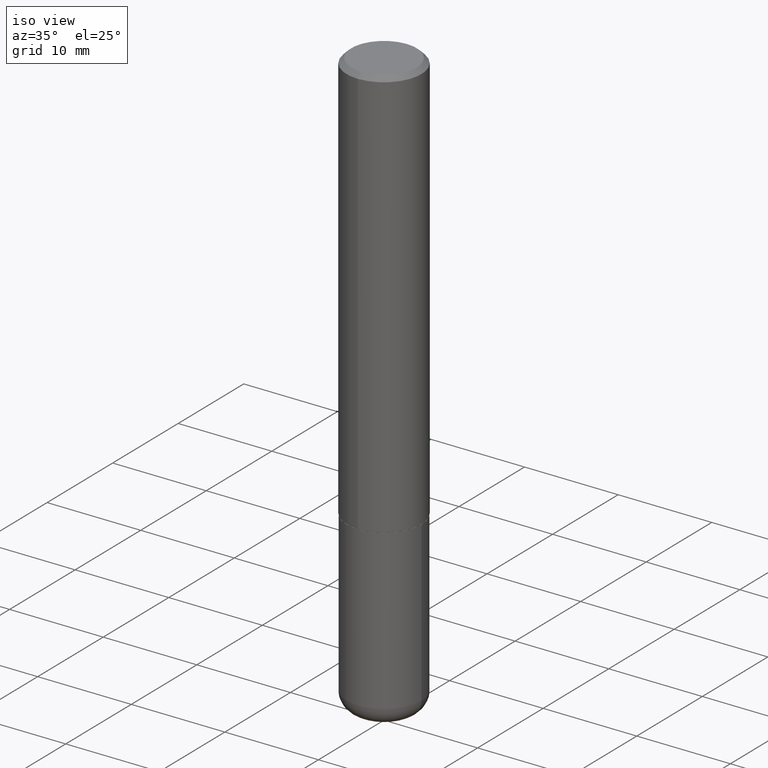
[diagram: clean part render]
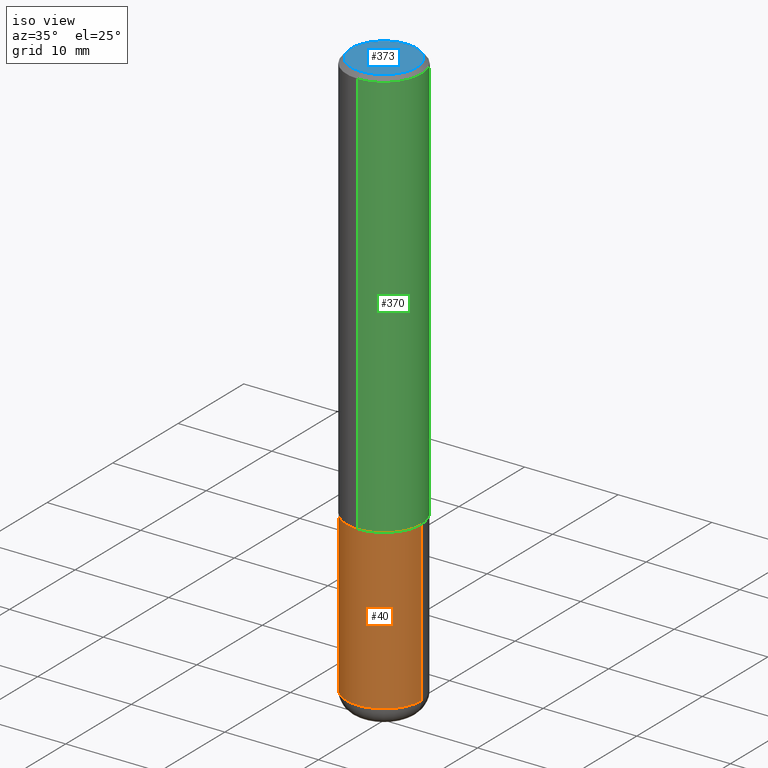
[diagram: same view with three faces highlighted in distinct colors, each labeled with its STEP entity id]
A machine part, iso view with three faces highlighted in distinct colors.
Their STEP definitions:

[orange] entity #40 — the highlighted cylindrical surface (partial cylindrical patch) has radius 4.0005 mm, axis along (-0, 0, 1).
#10 = LINE ( 'NONE', #398, #116 ) ;
#12 = VERTEX_POINT ( 'NONE', #367 ) ;
#20 = CIRCLE ( 'NONE', #194, 0.1575000000000000011 ) ;
#23 = CYLINDRICAL_SURFACE ( 'NONE', #227, 0.1575000000000000011 ) ;
#40 = ADVANCED_FACE ( 'NONE', ( #378 ), #23, .T. ) ;
#43 = DIRECTION ( 'NONE',  ( -2.445468806185136877E-29, 3.491481338843145188E-15, 1.000000000000000000 ) ) ;
#51 = DIRECTION ( 'NONE',  ( 1.000000000000000000, -6.982962677686261977E-15, 0.000000000000000000 ) ) ;
#70 = VECTOR ( 'NONE', #364, 39.37007874015748143 ) ;
#84 = EDGE_LOOP ( 'NONE', ( #293, #100, #313, #166 ) ) ;
#100 = ORIENTED_EDGE ( 'NONE', *, *, #330, .T. ) ;
#102 = CARTESIAN_POINT ( 'NONE',  ( 0.1574999999999999456, -9.484958205101285532E-15, -2.401600000000000623 ) ) ;
#114 = CARTESIAN_POINT ( 'NONE',  ( -0.1575000000000000011, -6.097612544499682750E-15, -1.732300000000000173 ) ) ;
#116 = VECTOR ( 'NONE', #43, 39.37007874015748143 ) ;
#118 = CARTESIAN_POINT ( 'NONE',  ( 5.873037884934225470E-29, -8.385141583365698841E-15, -2.401600000000000623 ) ) ;
#124 = DIRECTION ( 'NONE',  ( 1.000000000000000000, -6.982962677686268288E-15, 0.000000000000000000 ) ) ;
#150 = AXIS2_PLACEMENT_3D ( 'NONE', #248, #312, #124 ) ;
#166 = ORIENTED_EDGE ( 'NONE', *, *, #294, .F. ) ;
#183 = CIRCLE ( 'NONE', #150, 0.1575000000000000011 ) ;
#184 = DIRECTION ( 'NONE',  ( 1.000000000000000000, -6.982962677686265922E-15, 4.876176775795935232E-29 ) ) ;
#194 = AXIS2_PLACEMENT_3D ( 'NONE', #118, #417, #51 ) ;
#218 = CARTESIAN_POINT ( 'NONE',  ( 0.000000000000000000, 0.000000000000000000, 0.000000000000000000 ) ) ;
#227 = AXIS2_PLACEMENT_3D ( 'NONE', #218, #278, #184 ) ;
#230 = EDGE_CURVE ( 'NONE', #379, #257, #295, .T. ) ;
#236 = CARTESIAN_POINT ( 'NONE',  ( -0.1575000000000000011, 1.119104808822157801E-15, -7.747322767151475583E-30 ) ) ;
#248 = CARTESIAN_POINT ( 'NONE',  ( 4.236285612954512953E-29, -6.048293123277982656E-15, -1.732300000000000173 ) ) ;
#257 = VERTEX_POINT ( 'NONE', #114 ) ;
#268 = EDGE_CURVE ( 'NONE', #355, #12, #10, .T. ) ;
#278 = DIRECTION ( 'NONE',  ( -2.445468806185136597E-29, 3.491481338843145583E-15, 1.000000000000000000 ) ) ;
#293 = ORIENTED_EDGE ( 'NONE', *, *, #230, .F. ) ;
#294 = EDGE_CURVE ( 'NONE', #257, #12, #183, .T. ) ;
#295 = LINE ( 'NONE', #236, #70 ) ;
#312 = DIRECTION ( 'NONE',  ( -2.445468806185136597E-29, 3.491481338843145583E-15, 1.000000000000000000 ) ) ;
#313 = ORIENTED_EDGE ( 'NONE', *, *, #268, .T. ) ;
#315 = CARTESIAN_POINT ( 'NONE',  ( -0.1574999999999999456, -7.266036774543542815E-15, -2.401600000000000623 ) ) ;
#330 = EDGE_CURVE ( 'NONE', #379, #355, #20, .T. ) ;
#355 = VERTEX_POINT ( 'NONE', #102 ) ;
#364 = DIRECTION ( 'NONE',  ( -2.445468806185136877E-29, 3.491481338843145188E-15, 1.000000000000000000 ) ) ;
#367 = CARTESIAN_POINT ( 'NONE',  ( 0.1575000000000000011, -7.148109745013570136E-15, -1.732300000000000173 ) ) ;
#378 = FACE_OUTER_BOUND ( 'NONE', #84, .T. ) ;
#379 = VERTEX_POINT ( 'NONE', #315 ) ;
#398 = CARTESIAN_POINT ( 'NONE',  ( 0.1575000000000000011, -1.099816621735586889E-15, 7.679978421878598033E-30 ) ) ;
#417 = DIRECTION ( 'NONE',  ( -2.445468806185136597E-29, 3.491481338843145583E-15, 1.000000000000000000 ) ) ;

[blue] entity #373 — the highlighted planar face has unit normal (0, -0, -1).
#24 = AXIS2_PLACEMENT_3D ( 'NONE', #187, #411, #251 ) ;
#89 = EDGE_CURVE ( 'NONE', #289, #331, #234, .T. ) ;
#91 = DIRECTION ( 'NONE',  ( -6.982962677686265922E-15, -1.000000000000000000, 3.489990069892911466E-15 ) ) ;
#108 = ORIENTED_EDGE ( 'NONE', *, *, #89, .T. ) ;
#125 = CIRCLE ( 'NONE', #171, 0.1375000000000000389 ) ;
#135 = DIRECTION ( 'NONE',  ( 2.446510153727323724E-29, -3.489990069892911860E-15, -1.000000000000000000 ) ) ;
#171 = AXIS2_PLACEMENT_3D ( 'NONE', #216, #281, #91 ) ;
#179 = CARTESIAN_POINT ( 'NONE',  ( 1.029986994958724379E-15, 0.1375000000000000389, -5.398378589523384863E-16 ) ) ;
#186 = EDGE_CURVE ( 'NONE', #331, #289, #125, .T. ) ;
#187 = CARTESIAN_POINT ( 'NONE',  ( 1.467030837132400843E-45, -2.092745475026303741E-31, -5.996422434206290832E-17 ) ) ;
#192 = CARTESIAN_POINT ( 'NONE',  ( 9.601573681818618699E-16, 0.1375000000000000389, -5.098557467813069335E-16 ) ) ;
#216 = CARTESIAN_POINT ( 'NONE',  ( 1.467030837132400843E-45, -2.092745475026303741E-31, -5.996422434206290832E-17 ) ) ;
#217 = AXIS2_PLACEMENT_3D ( 'NONE', #192, #135, #353 ) ;
#226 = PLANE ( 'NONE',  #217 ) ;
#234 = CIRCLE ( 'NONE', #24, 0.1375000000000000389 ) ;
#251 = DIRECTION ( 'NONE',  ( -6.982962677686265922E-15, -1.000000000000000000, 3.489990069892911466E-15 ) ) ;
#281 = DIRECTION ( 'NONE',  ( -2.446510153727324005E-29, 3.489990069892911860E-15, 1.000000000000000000 ) ) ;
#283 = ORIENTED_EDGE ( 'NONE', *, *, #186, .T. ) ;
#289 = VERTEX_POINT ( 'NONE', #375 ) ;
#320 = FACE_OUTER_BOUND ( 'NONE', #395, .T. ) ;
#331 = VERTEX_POINT ( 'NONE', #179 ) ;
#353 = DIRECTION ( 'NONE',  ( 6.982962677686265922E-15, 1.000000000000000000, -3.489990069892911860E-15 ) ) ;
#373 = ADVANCED_FACE ( 'NONE', ( #320 ), #226, .F. ) ;
#375 = CARTESIAN_POINT ( 'NONE',  ( -1.011923454671300448E-15, -0.1375000000000000389, 4.199094102682127190E-16 ) ) ;
#395 = EDGE_LOOP ( 'NONE', ( #283, #108 ) ) ;
#411 = DIRECTION ( 'NONE',  ( -2.446510153727324005E-29, 3.489990069892911860E-15, 1.000000000000000000 ) ) ;

[green] entity #370 — the highlighted cylindrical surface (partial cylindrical patch) has radius 4.0005 mm, axis along (-0, 0, 1).
#3 = AXIS2_PLACEMENT_3D ( 'NONE', #50, #243, #301 ) ;
#11 = CIRCLE ( 'NONE', #249, 0.1574999999999999456 ) ;
#31 = LINE ( 'NONE', #198, #188 ) ;
#35 = EDGE_LOOP ( 'NONE', ( #274, #47, #151, #310 ) ) ;
#47 = ORIENTED_EDGE ( 'NONE', *, *, #388, .T. ) ;
#50 = CARTESIAN_POINT ( 'NONE',  ( 4.235643029148117026E-29, -6.042219808005598538E-15, -1.731300000000000283 ) ) ;
#68 = VERTEX_POINT ( 'NONE', #245 ) ;
#69 = DIRECTION ( 'NONE',  ( -2.446510153727324005E-29, 3.489990069892911860E-15, 1.000000000000000000 ) ) ;
#82 = CARTESIAN_POINT ( 'NONE',  ( 1.099816621735586889E-15, 0.1574999999999998901, -0.02000000000000058328 ) ) ;
#110 = CARTESIAN_POINT ( 'NONE',  ( -1.099816621735587480E-15, -0.1575000000000000844, 5.496734360081339532E-16 ) ) ;
#129 = EDGE_CURVE ( 'NONE', #254, #338, #298, .T. ) ;
#151 = ORIENTED_EDGE ( 'NONE', *, *, #157, .F. ) ;
#157 = EDGE_CURVE ( 'NONE', #68, #360, #11, .T. ) ;
#162 = VECTOR ( 'NONE', #233, 39.37007874015748143 ) ;
#172 = AXIS2_PLACEMENT_3D ( 'NONE', #348, #69, #359 ) ;
#182 = DIRECTION ( 'NONE',  ( -6.982962677686265922E-15, -1.000000000000000000, 3.496114991891766760E-15 ) ) ;
#188 = VECTOR ( 'NONE', #261, 39.37007874015748143 ) ;
#198 = CARTESIAN_POINT ( 'NONE',  ( 1.119104808822158195E-15, 0.1575000000000000844, -5.496734360081339532E-16 ) ) ;
#214 = DIRECTION ( 'NONE',  ( -2.446510153727324005E-29, 3.489990069892911860E-15, 1.000000000000000000 ) ) ;
#224 = FACE_OUTER_BOUND ( 'NONE', #35, .T. ) ;
#233 = DIRECTION ( 'NONE',  ( -2.446510153727324285E-29, 3.489990069892911860E-15, 1.000000000000000000 ) ) ;
#243 = DIRECTION ( 'NONE',  ( -2.446510153727324005E-29, 3.489990069892911860E-15, 1.000000000000000000 ) ) ;
#245 = CARTESIAN_POINT ( 'NONE',  ( -1.080528434649015385E-15, -0.1575000000000000289, -0.01999999999999948347 ) ) ;
#249 = AXIS2_PLACEMENT_3D ( 'NONE', #371, #214, #182 ) ;
#254 = VERTEX_POINT ( 'NONE', #396 ) ;
#261 = DIRECTION ( 'NONE',  ( -2.446510153727324285E-29, 3.489990069892911860E-15, 1.000000000000000000 ) ) ;
#274 = ORIENTED_EDGE ( 'NONE', *, *, #129, .T. ) ;
#290 = CYLINDRICAL_SURFACE ( 'NONE', #172, 0.1575000000000000844 ) ;
#298 = CIRCLE ( 'NONE', #3, 0.1575000000000001954 ) ;
#301 = DIRECTION ( 'NONE',  ( -6.982962677686265922E-15, -1.000000000000000000, 3.469013325287948955E-15 ) ) ;
#310 = ORIENTED_EDGE ( 'NONE', *, *, #358, .F. ) ;
#338 = VERTEX_POINT ( 'NONE', #386 ) ;
#348 = CARTESIAN_POINT ( 'NONE',  ( 0.000000000000000000, 0.000000000000000000, 0.000000000000000000 ) ) ;
#358 = EDGE_CURVE ( 'NONE', #254, #68, #393, .T. ) ;
#359 = DIRECTION ( 'NONE',  ( -6.982962677686265922E-15, -1.000000000000000000, 3.489990069892912254E-15 ) ) ;
#360 = VERTEX_POINT ( 'NONE', #82 ) ;
#370 = ADVANCED_FACE ( 'NONE', ( #224 ), #290, .T. ) ;
#371 = CARTESIAN_POINT ( 'NONE',  ( 4.893020307454656557E-31, -6.979980139785835060E-17, -0.02000000000000003511 ) ) ;
#386 = CARTESIAN_POINT ( 'NONE',  ( 1.119104808822180283E-15, 0.1574999999999941447, -1.731300000000000727 ) ) ;
#388 = EDGE_CURVE ( 'NONE', #338, #360, #31, .T. ) ;
#393 = LINE ( 'NONE', #110, #162 ) ;
#396 = CARTESIAN_POINT ( 'NONE',  ( -1.099816621735545671E-15, -0.1575000000000062461, -1.731299999999999617 ) ) ;